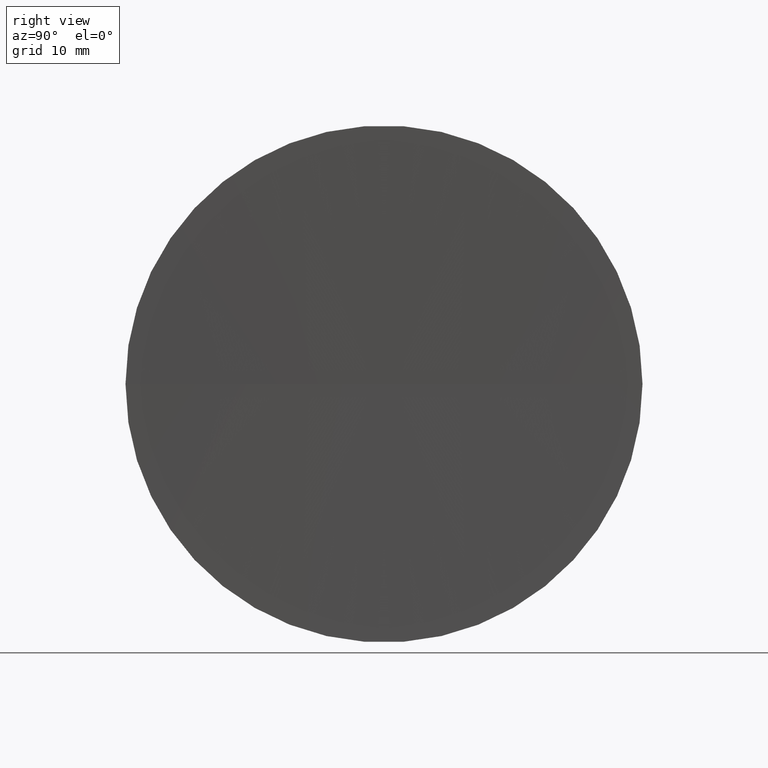
[diagram: clean part render]
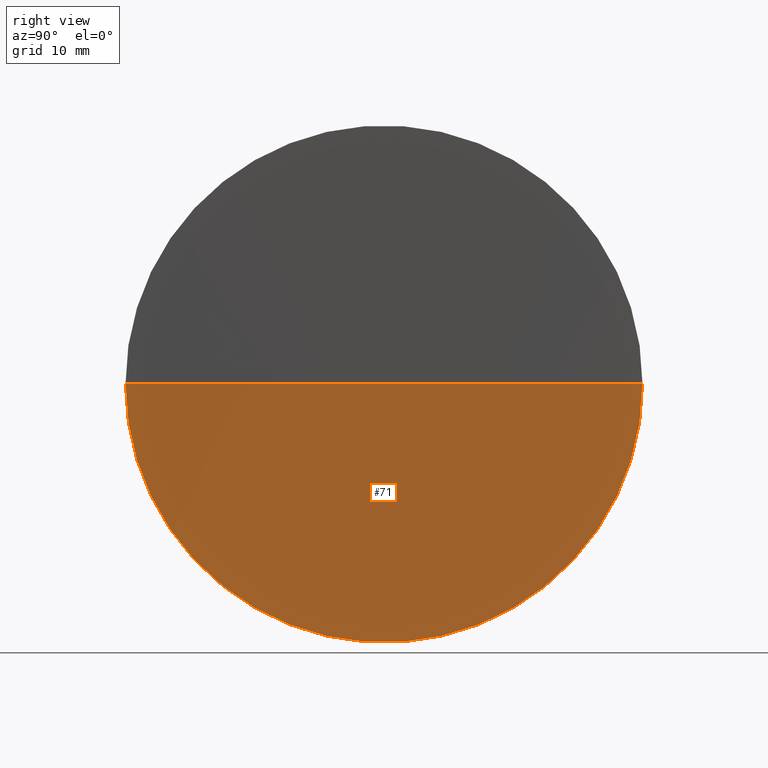
[diagram: same view with one face highlighted and labeled with its STEP entity id]
A machine part, right view. The second image highlights one B-rep face of the part: STEP entity #71.
In plain terms, the highlighted spherical surface has radius 1200 mm.
Its self-contained STEP definition (entity closure, byte-faithful):
#15 = DIRECTION ( 'NONE',  ( 1.000000000000000000, 0.0000000000000000000, 0.0000000000000000000 ) ) ;
#35 = AXIS2_PLACEMENT_3D ( 'NONE', #98, #46, #154 ) ;
#38 = CARTESIAN_POINT ( 'NONE',  ( 249.1821311214903600, 130.4336809418746600, 0.0000000000000000000 ) ) ;
#46 = DIRECTION ( 'NONE',  ( -8.496118506040342700E-032, 1.224646799147353200E-016, -1.000000000000000000 ) ) ;
#49 = DIRECTION ( 'NONE',  ( 1.110223024625153800E-015, -1.000000000000000000, 0.0000000000000000000 ) ) ;
#54 = EDGE_CURVE ( 'NONE', #149, #137, #159, .T. ) ;
#71 = ADVANCED_FACE ( 'NONE', ( #155 ), #134, .F. ) ;
#75 = CARTESIAN_POINT ( 'NONE',  ( 1449.182131121490300, 130.4336809418753900, 0.0000000000000000000 ) ) ;
#82 = EDGE_CURVE ( 'NONE', #186, #149, #148, .T. ) ;
#88 = ORIENTED_EDGE ( 'NONE', *, *, #125, .T. ) ;
#98 = CARTESIAN_POINT ( 'NONE',  ( 1449.182131121490300, 130.4336809418753900, 0.0000000000000000000 ) ) ;
#99 = EDGE_LOOP ( 'NONE', ( #144, #105, #88 ) ) ;
#105 = ORIENTED_EDGE ( 'NONE', *, *, #82, .F. ) ;
#113 = DIRECTION ( 'NONE',  ( -1.000000000000000000, -6.937607244762875000E-016, -0.0000000000000000000 ) ) ;
#124 = CARTESIAN_POINT ( 'NONE',  ( 249.4425760513079200, 155.4336809418852900, 0.0000000000000000000 ) ) ;
#125 = EDGE_CURVE ( 'NONE', #186, #137, #178, .T. ) ;
#127 = CARTESIAN_POINT ( 'NONE',  ( 1449.182131121490300, 130.4336809418753900, 0.0000000000000000000 ) ) ;
#128 = AXIS2_PLACEMENT_3D ( 'NONE', #167, #113, #49 ) ;
#134 = SPHERICAL_SURFACE ( 'NONE', #147, 1200.000000000000000 ) ;
#137 = VERTEX_POINT ( 'NONE', #38 ) ;
#144 = ORIENTED_EDGE ( 'NONE', *, *, #54, .F. ) ;
#147 = AXIS2_PLACEMENT_3D ( 'NONE', #75, #156, #180 ) ;
#148 = CIRCLE ( 'NONE', #128, 25.00000000000006400 ) ;
#149 = VERTEX_POINT ( 'NONE', #169 ) ;
#154 = DIRECTION ( 'NONE',  ( 0.0000000000000000000, 1.000000000000000000, 1.224646799147353200E-016 ) ) ;
#155 = FACE_OUTER_BOUND ( 'NONE', #99, .T. ) ;
#156 = DIRECTION ( 'NONE',  ( 0.0000000000000000000, 0.0000000000000000000, -1.000000000000000000 ) ) ;
#159 = CIRCLE ( 'NONE', #35, 1200.000000000000000 ) ;
#160 = DIRECTION ( 'NONE',  ( 0.0000000000000000000, -0.0000000000000000000, 1.000000000000000000 ) ) ;
#167 = CARTESIAN_POINT ( 'NONE',  ( 249.4425760513077300, 130.4336809418806500, 0.0000000000000000000 ) ) ;
#169 = CARTESIAN_POINT ( 'NONE',  ( 249.4425760513079500, 105.4336809418699500, -3.061616997868951400E-015 ) ) ;
#175 = AXIS2_PLACEMENT_3D ( 'NONE', #127, #160, #15 ) ;
#178 = CIRCLE ( 'NONE', #175, 1200.000000000000000 ) ;
#180 = DIRECTION ( 'NONE',  ( -7.401486830834377300E-016, 1.000000000000000000, 0.0000000000000000000 ) ) ;
#186 = VERTEX_POINT ( 'NONE', #124 ) ;